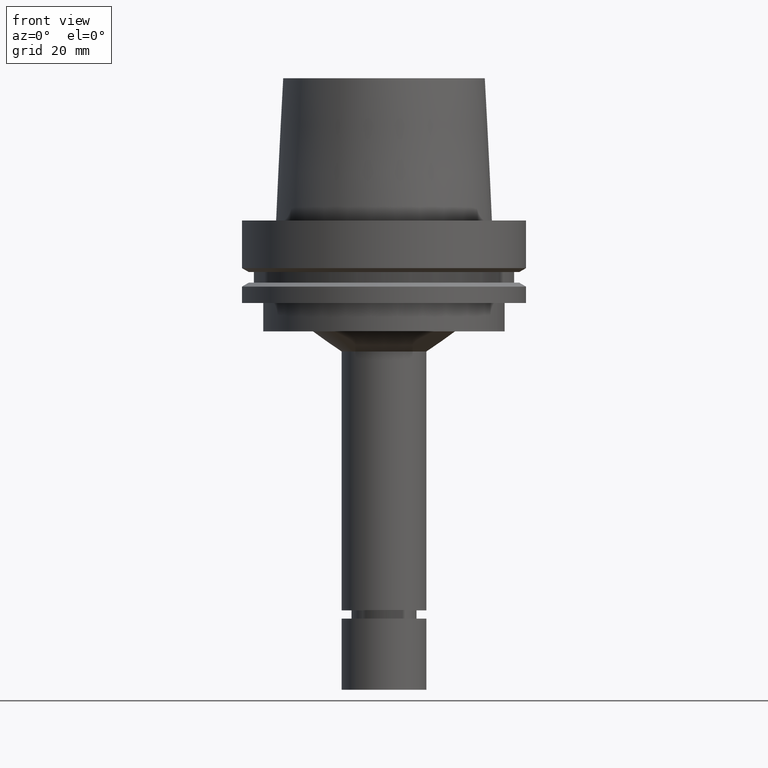
[diagram: clean part render]
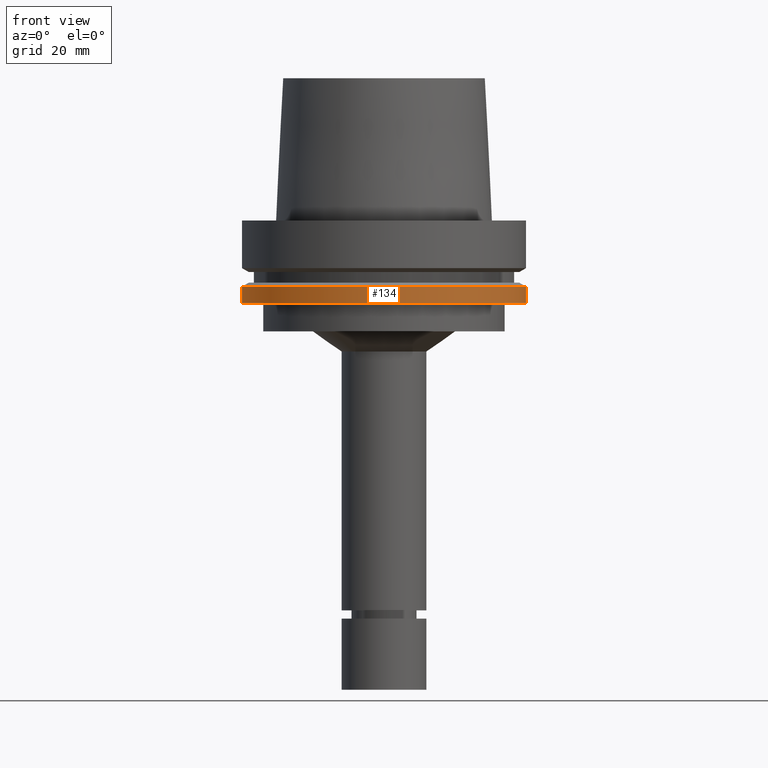
[diagram: same view with one face highlighted and labeled with its STEP entity id]
A machine part, front view. The second image highlights one B-rep face of the part: STEP entity #134.
In plain terms, the highlighted cylindrical surface (bore or boss wall) has radius 50 mm, axis along (0, 0, -1).
Its self-contained STEP definition (entity closure, byte-faithful):
#134=ADVANCED_FACE('Unnamed[1]',(#303,#304),#305,.T.);
#172=EDGE_CURVE('Unnamed[1]',#362,#362,#363,.T.);
#194=EDGE_CURVE('Unnamed[1]',#396,#396,#397,.T.);
#303=FACE_BOUND('',#522,.T.);
#304=FACE_BOUND('',#523,.T.);
#305=CYLINDRICAL_SURFACE('',#524,50.0);
#362=VERTEX_POINT('',#595);
#363=CIRCLE('',#596,50.0);
#396=VERTEX_POINT('',#638);
#397=CIRCLE('',#639,50.0);
#522=EDGE_LOOP('',(#745));
#523=EDGE_LOOP('',(#746));
#524=AXIS2_PLACEMENT_3D('',#747,#748,#749);
#595=CARTESIAN_POINT('',(1.77573785876366E-015,50.0,-29.0));
#596=AXIS2_PLACEMENT_3D('',#810,#811,#812);
#638=CARTESIAN_POINT('',(1.42350465615161E-015,50.0,-23.24759526));
#639=AXIS2_PLACEMENT_3D('',#848,#849,#850);
#745=ORIENTED_EDGE('',*,*,#172,.F.);
#746=ORIENTED_EDGE('',*,*,#194,.T.);
#747=CARTESIAN_POINT('',(1.59962125745764E-015,3.19924251491527E-015,-26.12379763));
#748=DIRECTION('',(6.12323399573677E-017,1.22464679914735E-016,-1.0));
#749=DIRECTION('',(-1.23259516440783E-032,1.0,1.22464679914735E-016));
#810=CARTESIAN_POINT('',(1.77573785876366E-015,3.55147571752733E-015,-29.0));
#811=DIRECTION('',(6.12323399573677E-017,1.22464679914735E-016,-1.0));
#812=DIRECTION('',(-1.23259516440783E-032,1.0,1.22464679914735E-016));
#848=CARTESIAN_POINT('',(1.42350465615161E-015,2.84700931230322E-015,-23.24759526));
#849=DIRECTION('',(6.12323399573677E-017,1.22464679914735E-016,-1.0));
#850=DIRECTION('',(-1.23259516440783E-032,1.0,1.22464679914735E-016));